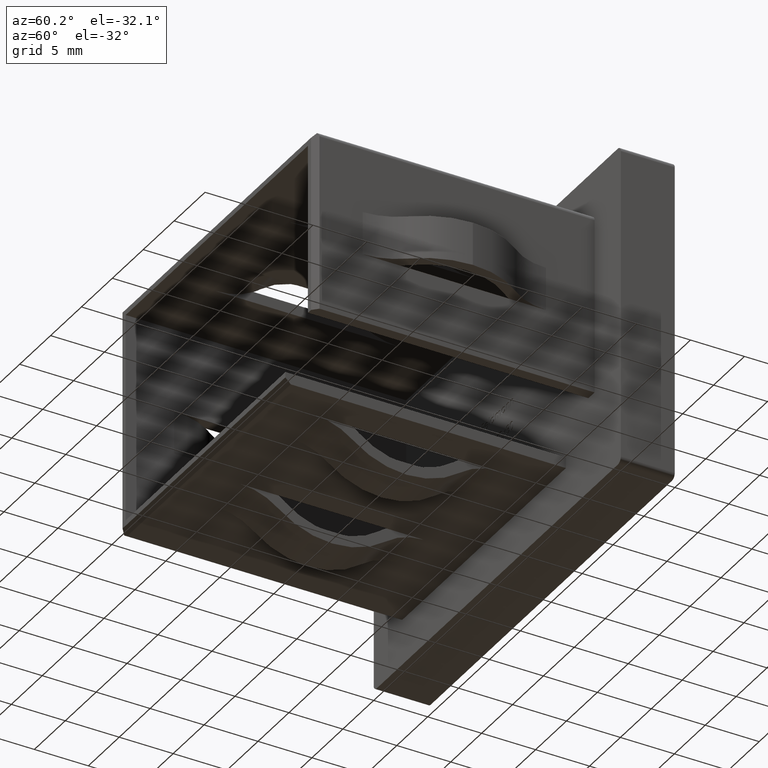
[diagram: clean part render]
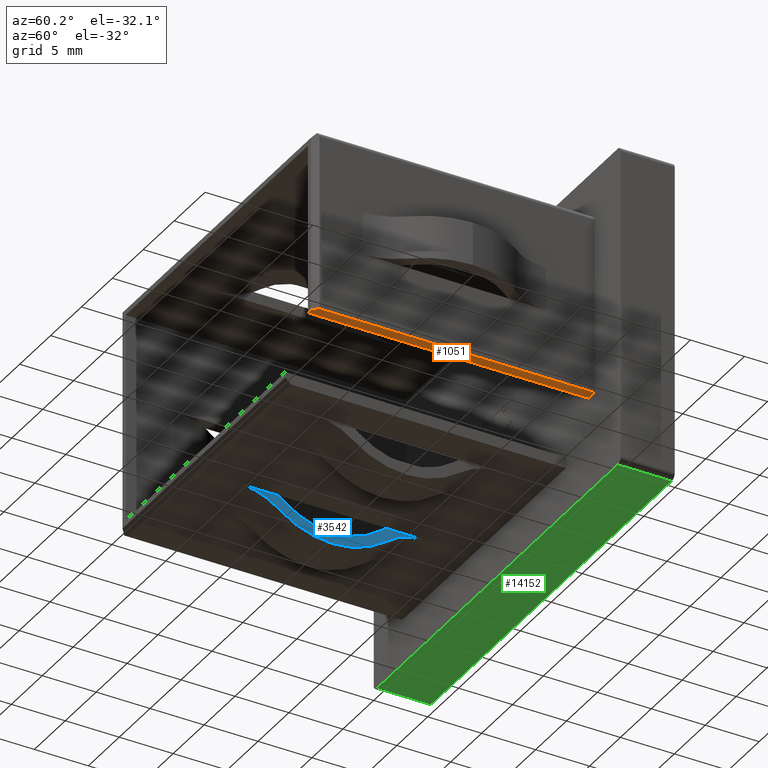
[diagram: same view with three faces highlighted in distinct colors, each labeled with its STEP entity id]
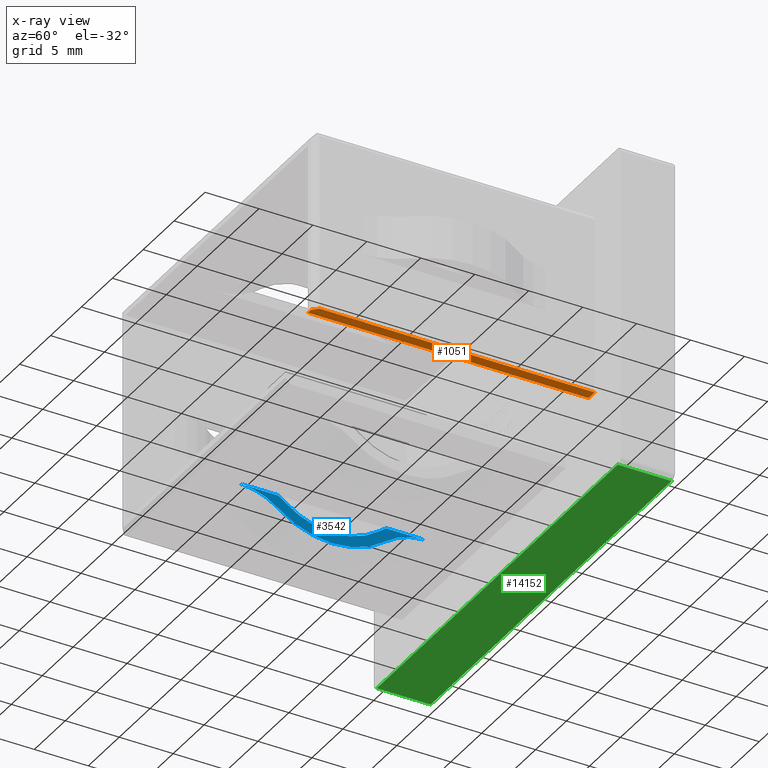
[diagram: x-ray of the same camera — body ghosted, the three highlighted faces saturated]
A machine part, auxiliary view with three faces highlighted in distinct colors.
The next image is the same camera in x-ray (body ghosted, the three faces saturated) — at least one of them is partly hidden behind the body in this view.
Their STEP definitions:

[orange] entity #1051 — the highlighted planar face has unit normal (-0, 0, 1).
#99 = VECTOR ( 'NONE', #9354, 1000.000000000000114 ) ;
#116 = VECTOR ( 'NONE', #13108, 1000.000000000000000 ) ;
#141 = DIRECTION ( 'NONE',  ( -0.000000000000000000, 1.000000000000000000, -0.000000000000000000 ) ) ;
#323 = AXIS2_PLACEMENT_3D ( 'NONE', #4615, #9201, #5573 ) ;
#675 = CARTESIAN_POINT ( 'NONE',  ( 14.75000000000000000, 0.000000000000000000, -6.100000000000004086 ) ) ;
#1051 = ADVANCED_FACE ( 'NONE', ( #13719 ), #5720, .F. ) ;
#1150 = ORIENTED_EDGE ( 'NONE', *, *, #4327, .T. ) ;
#1166 = ORIENTED_EDGE ( 'NONE', *, *, #9949, .T. ) ;
#2971 = LINE ( 'NONE', #8582, #116 ) ;
#3146 = LINE ( 'NONE', #5764, #99 ) ;
#3163 = VECTOR ( 'NONE', #7706, 1000.000000000000000 ) ;
#3514 = CARTESIAN_POINT ( 'NONE',  ( 15.75000000000000000, -26.00000000000000000, -6.100000000000003197 ) ) ;
#3596 = EDGE_CURVE ( 'NONE', #6007, #11282, #12934, .T. ) ;
#4327 = EDGE_CURVE ( 'NONE', #14266, #11282, #3146, .T. ) ;
#4615 = CARTESIAN_POINT ( 'NONE',  ( 14.75000000000000000, -26.00000000000000000, -6.100000000000004086 ) ) ;
#4799 = CARTESIAN_POINT ( 'NONE',  ( 15.75000000000000000, 0.000000000000000000, -6.100000000000003197 ) ) ;
#4996 = EDGE_LOOP ( 'NONE', ( #11080, #1150, #5321, #1166, #11093 ) ) ;
#5249 = LINE ( 'NONE', #3514, #14135 ) ;
#5321 = ORIENTED_EDGE ( 'NONE', *, *, #3596, .F. ) ;
#5397 = CARTESIAN_POINT ( 'NONE',  ( 14.75000000000000000, -26.00000000000000000, -6.100000000000004086 ) ) ;
#5573 = DIRECTION ( 'NONE',  ( 1.000000000000000000, 0.000000000000000000, 8.673617379884028570E-16 ) ) ;
#5720 = PLANE ( 'NONE',  #323 ) ;
#5764 = CARTESIAN_POINT ( 'NONE',  ( 15.25000000000000178, -25.99999999999999645, -6.100000000000004086 ) ) ;
#6007 = VERTEX_POINT ( 'NONE', #13003 ) ;
#6946 = EDGE_CURVE ( 'NONE', #10038, #9591, #8109, .T. ) ;
#7353 = VECTOR ( 'NONE', #9989, 1000.000000000000000 ) ;
#7706 = DIRECTION ( 'NONE',  ( 1.000000000000000000, 0.000000000000000000, 8.673617379884027583E-16 ) ) ;
#8109 = LINE ( 'NONE', #675, #7353 ) ;
#8150 = CARTESIAN_POINT ( 'NONE',  ( 15.75000000000000000, -25.49999999999999289, -6.100000000000003197 ) ) ;
#8582 = CARTESIAN_POINT ( 'NONE',  ( 14.75000000000000000, -26.00000000000000000, -6.100000000000004086 ) ) ;
#9201 = DIRECTION ( 'NONE',  ( -8.673617379884028570E-16, 0.000000000000000000, 1.000000000000000000 ) ) ;
#9354 = DIRECTION ( 'NONE',  ( -0.7071067811865429098, -0.7071067811865521247, -6.133173666733452179E-16 ) ) ;
#9591 = VERTEX_POINT ( 'NONE', #4799 ) ;
#9949 = EDGE_CURVE ( 'NONE', #6007, #10038, #2971, .T. ) ;
#9989 = DIRECTION ( 'NONE',  ( 1.000000000000000000, 0.000000000000000000, 8.673617379884027583E-16 ) ) ;
#10038 = VERTEX_POINT ( 'NONE', #12109 ) ;
#11080 = ORIENTED_EDGE ( 'NONE', *, *, #11886, .F. ) ;
#11093 = ORIENTED_EDGE ( 'NONE', *, *, #6946, .T. ) ;
#11282 = VERTEX_POINT ( 'NONE', #12148 ) ;
#11886 = EDGE_CURVE ( 'NONE', #14266, #9591, #5249, .T. ) ;
#12109 = CARTESIAN_POINT ( 'NONE',  ( 14.75000000000000000, 0.000000000000000000, -6.100000000000004086 ) ) ;
#12148 = CARTESIAN_POINT ( 'NONE',  ( 15.25000000000000000, -26.00000000000000000, -6.100000000000003197 ) ) ;
#12934 = LINE ( 'NONE', #5397, #3163 ) ;
#13003 = CARTESIAN_POINT ( 'NONE',  ( 14.75000000000000000, -26.00000000000000000, -6.100000000000004086 ) ) ;
#13108 = DIRECTION ( 'NONE',  ( -0.000000000000000000, 1.000000000000000000, -0.000000000000000000 ) ) ;
#13719 = FACE_OUTER_BOUND ( 'NONE', #4996, .T. ) ;
#14135 = VECTOR ( 'NONE', #141, 1000.000000000000000 ) ;
#14266 = VERTEX_POINT ( 'NONE', #8150 ) ;

[blue] entity #3542 — the highlighted planar face has unit normal (1, 0, -0).
#360 = CARTESIAN_POINT ( 'NONE',  ( -4.000000000000000000, -12.99999977876895763, -5.784313886884255851 ) ) ;
#767 = CARTESIAN_POINT ( 'NONE',  ( -4.000000000000001776, -26.00000000000000000, -10.74999999999999822 ) ) ;
#876 = EDGE_CURVE ( 'NONE', #9582, #3913, #1746, .T. ) ;
#943 = AXIS2_PLACEMENT_3D ( 'NONE', #13564, #10190, #14921 ) ;
#1401 = CARTESIAN_POINT ( 'NONE',  ( -4.000000000000003553, -21.49999955753791525, -16.32597992672964082 ) ) ;
#1746 = LINE ( 'NONE', #2153, #3932 ) ;
#2153 = CARTESIAN_POINT ( 'NONE',  ( -4.000000000000001776, -26.00000000000000000, -10.74999999999999822 ) ) ;
#2222 = ORIENTED_EDGE ( 'NONE', *, *, #11412, .F. ) ;
#2237 = EDGE_LOOP ( 'NONE', ( #2285, #2222, #6091, #10220, #3515, #7614, #11434, #13620 ) ) ;
#2285 = ORIENTED_EDGE ( 'NONE', *, *, #6173, .F. ) ;
#2337 = DIRECTION ( 'NONE',  ( -2.637969542646583996E-16, 0.000000000000000000, -1.000000000000000000 ) ) ;
#2369 = DIRECTION ( 'NONE',  ( 1.000000000000000000, 0.000000000000000000, -2.009823613764056000E-16 ) ) ;
#2667 = AXIS2_PLACEMENT_3D ( 'NONE', #6876, #14901, #4417 ) ;
#2703 = CIRCLE ( 'NONE', #2667, 5.575979926729625724 ) ;
#3133 = CARTESIAN_POINT ( 'NONE',  ( -4.000000000000001776, -17.37230745835888257, -11.20683254350987212 ) ) ;
#3319 = DIRECTION ( 'NONE',  ( -0.000000000000000000, 1.000000000000000000, 0.000000000000000000 ) ) ;
#3482 = VERTEX_POINT ( 'NONE', #10206 ) ;
#3515 = ORIENTED_EDGE ( 'NONE', *, *, #876, .F. ) ;
#3542 = ADVANCED_FACE ( 'NONE', ( #7100 ), #6342, .T. ) ;
#3872 = CIRCLE ( 'NONE', #6714, 6.575979926729626612 ) ;
#3882 = VERTEX_POINT ( 'NONE', #11155 ) ;
#3913 = VERTEX_POINT ( 'NONE', #11087 ) ;
#3932 = VECTOR ( 'NONE', #3319, 1000.000000000000000 ) ;
#4257 = EDGE_CURVE ( 'NONE', #10219, #3882, #3872, .T. ) ;
#4344 = CIRCLE ( 'NONE', #14501, 7.965686113115764577 ) ;
#4417 = DIRECTION ( 'NONE',  ( -1.555532389617336363E-16, 0.000000000000000000, -1.000000000000000000 ) ) ;
#4484 = CIRCLE ( 'NONE', #11428, 6.575979926729626612 ) ;
#4601 = CARTESIAN_POINT ( 'NONE',  ( -4.000000000000003553, -7.999999778768955849, -11.98529407171675842 ) ) ;
#4875 = DIRECTION ( 'NONE',  ( -1.555532389617334638E-16, 0.000000000000000000, -1.000000000000000000 ) ) ;
#5170 = CARTESIAN_POINT ( 'NONE',  ( -4.000000000000003553, -4.499999999999996447, -16.32597992672964082 ) ) ;
#5174 = CARTESIAN_POINT ( 'NONE',  ( -4.000000000000001776, -17.99999977876895940, -11.98529407171675665 ) ) ;
#5379 = AXIS2_PLACEMENT_3D ( 'NONE', #1401, #5930, #4875 ) ;
#5585 = VECTOR ( 'NONE', #12701, 1000.000000000000000 ) ;
#5846 = VERTEX_POINT ( 'NONE', #4601 ) ;
#5930 = DIRECTION ( 'NONE',  ( 1.000000000000000000, 0.000000000000000000, -2.009823613764056000E-16 ) ) ;
#6091 = ORIENTED_EDGE ( 'NONE', *, *, #11030, .F. ) ;
#6173 = EDGE_CURVE ( 'NONE', #3482, #3882, #7015, .T. ) ;
#6342 = PLANE ( 'NONE',  #10883 ) ;
#6443 = DIRECTION ( 'NONE',  ( -2.009823613764056000E-16, 0.000000000000000000, -1.000000000000000000 ) ) ;
#6714 = AXIS2_PLACEMENT_3D ( 'NONE', #7988, #2369, #2337 ) ;
#6876 = CARTESIAN_POINT ( 'NONE',  ( -4.000000000000003553, -4.499999999999996447, -16.32597992672964082 ) ) ;
#7015 = LINE ( 'NONE', #767, #5585 ) ;
#7100 = FACE_OUTER_BOUND ( 'NONE', #2237, .T. ) ;
#7393 = DIRECTION ( 'NONE',  ( 1.000000000000000000, 0.000000000000000000, -2.009823613764056000E-16 ) ) ;
#7444 = DIRECTION ( 'NONE',  ( -2.177745207811449939E-16, -3.484392332498319902E-15, -1.000000000000000000 ) ) ;
#7614 = ORIENTED_EDGE ( 'NONE', *, *, #14424, .T. ) ;
#7988 = CARTESIAN_POINT ( 'NONE',  ( -4.000000000000003553, -21.49999955753791525, -16.32597992672964082 ) ) ;
#8426 = CARTESIAN_POINT ( 'NONE',  ( -4.000000000000003553, -8.627692099179039786, -11.20683254350986147 ) ) ;
#8535 = DIRECTION ( 'NONE',  ( 1.000000000000000000, 0.000000000000000000, -2.009823613764056000E-16 ) ) ;
#9582 = VERTEX_POINT ( 'NONE', #14018 ) ;
#9927 = CIRCLE ( 'NONE', #5379, 5.575979926729631941 ) ;
#10190 = DIRECTION ( 'NONE',  ( -1.000000000000000000, -0.000000000000000000, 2.009823613764056000E-16 ) ) ;
#10206 = CARTESIAN_POINT ( 'NONE',  ( -4.000000000000001776, -21.49999955753791525, -10.75000000000000355 ) ) ;
#10219 = VERTEX_POINT ( 'NONE', #3133 ) ;
#10220 = ORIENTED_EDGE ( 'NONE', *, *, #11772, .F. ) ;
#10883 = AXIS2_PLACEMENT_3D ( 'NONE', #13202, #7393, #6443 ) ;
#11030 = EDGE_CURVE ( 'NONE', #5846, #14051, #4344, .T. ) ;
#11087 = CARTESIAN_POINT ( 'NONE',  ( -4.000000000000001776, -4.499999999999997335, -10.74999999999999822 ) ) ;
#11155 = CARTESIAN_POINT ( 'NONE',  ( -4.000000000000002665, -18.01403342840540844, -10.74999999999999822 ) ) ;
#11339 = EDGE_CURVE ( 'NONE', #12045, #10219, #12314, .T. ) ;
#11412 = EDGE_CURVE ( 'NONE', #14051, #3482, #9927, .T. ) ;
#11428 = AXIS2_PLACEMENT_3D ( 'NONE', #5170, #8535, #14288 ) ;
#11434 = ORIENTED_EDGE ( 'NONE', *, *, #11339, .T. ) ;
#11772 = EDGE_CURVE ( 'NONE', #3913, #5846, #2703, .T. ) ;
#12045 = VERTEX_POINT ( 'NONE', #8426 ) ;
#12314 = CIRCLE ( 'NONE', #943, 6.965686113115772571 ) ;
#12701 = DIRECTION ( 'NONE',  ( -0.000000000000000000, 1.000000000000000000, 0.000000000000000000 ) ) ;
#13202 = CARTESIAN_POINT ( 'NONE',  ( -4.000000000000000000, 0.000000000000000000, 8.204000624858099383E-16 ) ) ;
#13564 = CARTESIAN_POINT ( 'NONE',  ( -4.000000000000000000, -12.99999977876895763, -5.784313886884255851 ) ) ;
#13620 = ORIENTED_EDGE ( 'NONE', *, *, #4257, .T. ) ;
#14018 = CARTESIAN_POINT ( 'NONE',  ( -4.000000000000002665, -7.985966129132504143, -10.74999999999999822 ) ) ;
#14051 = VERTEX_POINT ( 'NONE', #5174 ) ;
#14288 = DIRECTION ( 'NONE',  ( -2.637969542646583996E-16, 0.000000000000000000, -1.000000000000000000 ) ) ;
#14417 = DIRECTION ( 'NONE',  ( -1.000000000000000000, -0.000000000000000000, 2.009823613764056000E-16 ) ) ;
#14424 = EDGE_CURVE ( 'NONE', #9582, #12045, #4484, .T. ) ;
#14501 = AXIS2_PLACEMENT_3D ( 'NONE', #360, #14417, #7444 ) ;
#14901 = DIRECTION ( 'NONE',  ( 1.000000000000000000, 0.000000000000000000, -2.009823613764056000E-16 ) ) ;
#14921 = DIRECTION ( 'NONE',  ( -2.490384217443383927E-16, 0.000000000000000000, -1.000000000000000000 ) ) ;

[green] entity #14152 — the highlighted planar face has unit normal (0, 0, 1).
#535 = CARTESIAN_POINT ( 'NONE',  ( -20.00000000000000000, 5.000000000000000000, -15.00000000000000355 ) ) ;
#774 = VERTEX_POINT ( 'NONE', #4483 ) ;
#1858 = LINE ( 'NONE', #10249, #14723 ) ;
#2209 = CARTESIAN_POINT ( 'NONE',  ( 19.50000000000000000, 5.000000000000000000, -15.00000000000000355 ) ) ;
#2290 = LINE ( 'NONE', #535, #12275 ) ;
#2485 = FACE_OUTER_BOUND ( 'NONE', #12251, .T. ) ;
#3115 = CARTESIAN_POINT ( 'NONE',  ( -20.00000000000000000, 5.000000000000000000, -15.00000000000000355 ) ) ;
#3908 = DIRECTION ( 'NONE',  ( -1.000000000000000000, -0.000000000000000000, -0.000000000000000000 ) ) ;
#4136 = EDGE_CURVE ( 'NONE', #7079, #774, #4939, .T. ) ;
#4305 = VECTOR ( 'NONE', #5624, 1000.000000000000000 ) ;
#4483 = CARTESIAN_POINT ( 'NONE',  ( 19.50000000000000000, 0.000000000000000000, -15.00000000000000355 ) ) ;
#4612 = EDGE_CURVE ( 'NONE', #5345, #12733, #1858, .T. ) ;
#4939 = LINE ( 'NONE', #8891, #9282 ) ;
#5345 = VERTEX_POINT ( 'NONE', #10867 ) ;
#5624 = DIRECTION ( 'NONE',  ( -1.000000000000000000, -0.000000000000000000, -0.000000000000000000 ) ) ;
#5632 = DIRECTION ( 'NONE',  ( -0.000000000000000000, 1.000000000000000000, -0.000000000000000000 ) ) ;
#5960 = AXIS2_PLACEMENT_3D ( 'NONE', #3115, #14872, #7919 ) ;
#7079 = VERTEX_POINT ( 'NONE', #2209 ) ;
#7511 = EDGE_CURVE ( 'NONE', #774, #5345, #8090, .T. ) ;
#7688 = EDGE_CURVE ( 'NONE', #7079, #12733, #2290, .T. ) ;
#7827 = ORIENTED_EDGE ( 'NONE', *, *, #4612, .T. ) ;
#7919 = DIRECTION ( 'NONE',  ( 1.000000000000000000, 0.000000000000000000, -0.000000000000000000 ) ) ;
#8090 = LINE ( 'NONE', #14865, #4305 ) ;
#8493 = CARTESIAN_POINT ( 'NONE',  ( -19.50000000000000000, 5.000000000000000000, -15.00000000000000355 ) ) ;
#8891 = CARTESIAN_POINT ( 'NONE',  ( 19.50000000000000000, 5.000000000000000000, -15.00000000000000355 ) ) ;
#9049 = DIRECTION ( 'NONE',  ( 0.000000000000000000, -1.000000000000000000, 0.000000000000000000 ) ) ;
#9282 = VECTOR ( 'NONE', #9049, 1000.000000000000000 ) ;
#10249 = CARTESIAN_POINT ( 'NONE',  ( -19.50000000000000000, 5.000000000000000000, -15.00000000000000355 ) ) ;
#10867 = CARTESIAN_POINT ( 'NONE',  ( -19.50000000000000000, 0.000000000000000000, -15.00000000000000355 ) ) ;
#11003 = ORIENTED_EDGE ( 'NONE', *, *, #7688, .F. ) ;
#11694 = ORIENTED_EDGE ( 'NONE', *, *, #7511, .T. ) ;
#12251 = EDGE_LOOP ( 'NONE', ( #11003, #14058, #11694, #7827 ) ) ;
#12275 = VECTOR ( 'NONE', #3908, 1000.000000000000000 ) ;
#12733 = VERTEX_POINT ( 'NONE', #8493 ) ;
#13759 = PLANE ( 'NONE',  #5960 ) ;
#14058 = ORIENTED_EDGE ( 'NONE', *, *, #4136, .T. ) ;
#14152 = ADVANCED_FACE ( 'NONE', ( #2485 ), #13759, .F. ) ;
#14723 = VECTOR ( 'NONE', #5632, 1000.000000000000000 ) ;
#14865 = CARTESIAN_POINT ( 'NONE',  ( -20.00000000000000000, 0.000000000000000000, -15.00000000000000355 ) ) ;
#14872 = DIRECTION ( 'NONE',  ( 0.000000000000000000, 0.000000000000000000, 1.000000000000000000 ) ) ;